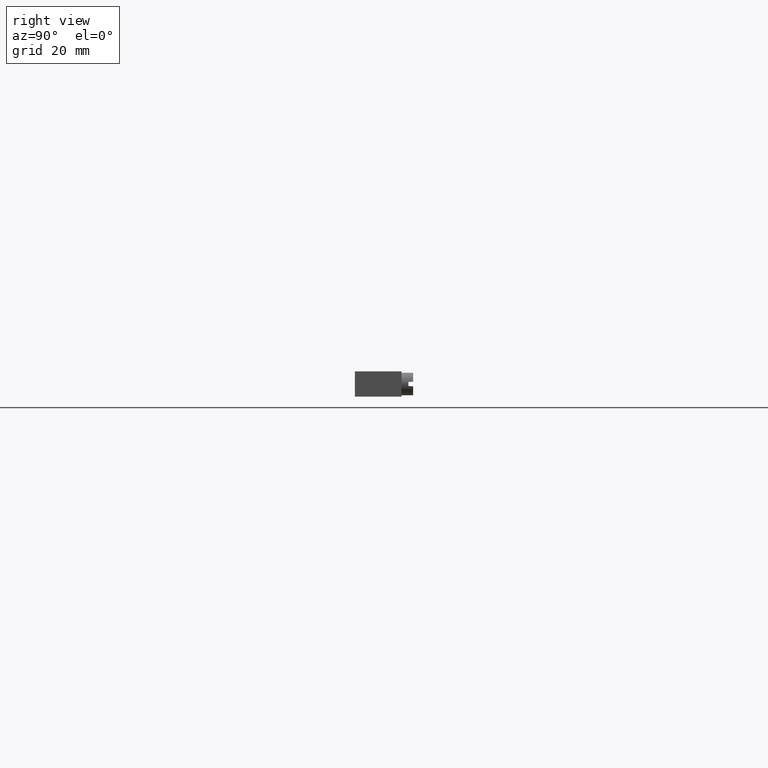
[diagram: clean part render]
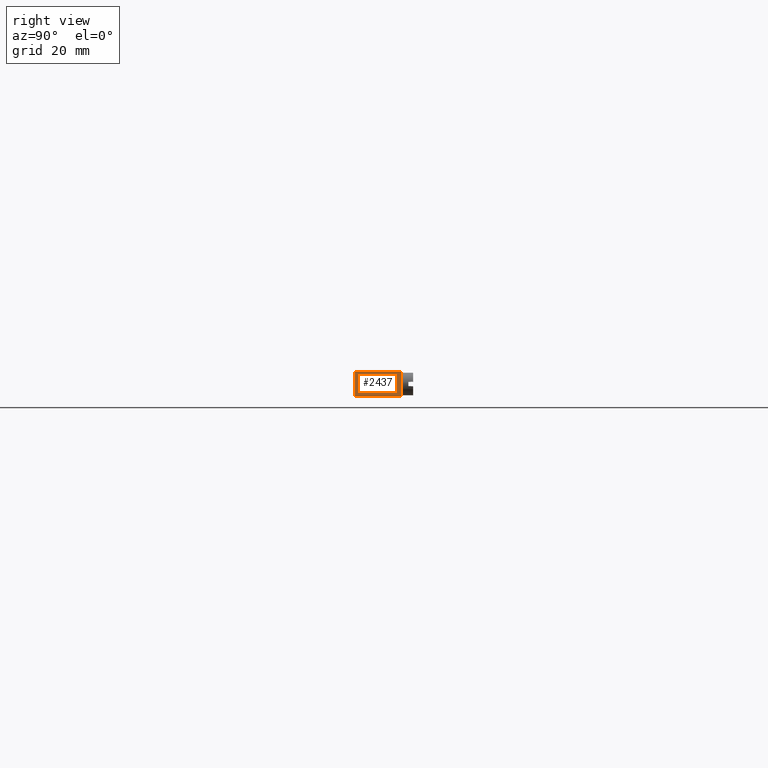
[diagram: same view with one face highlighted and labeled with its STEP entity id]
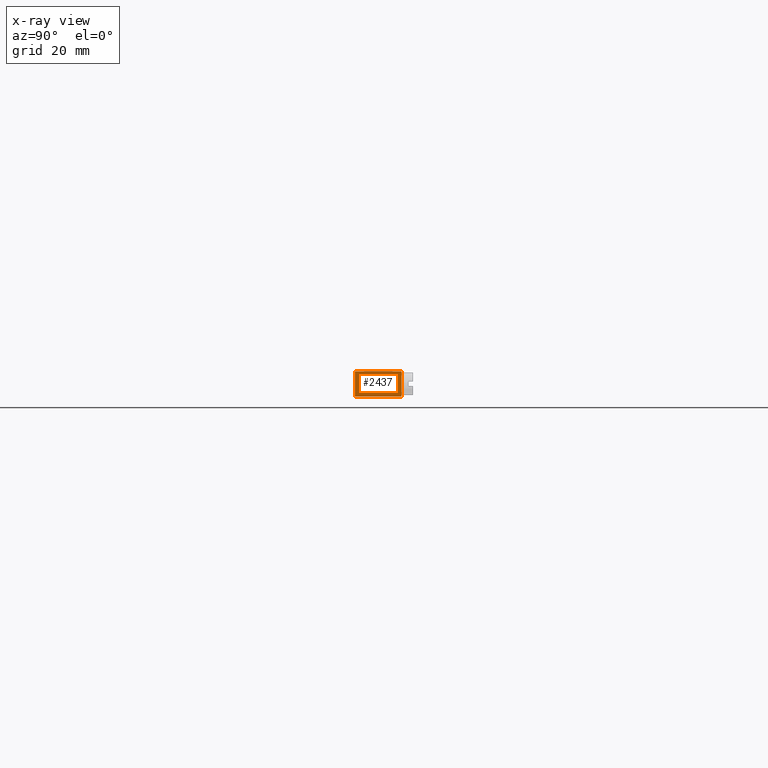
[diagram: x-ray of the same camera — body ghosted, the highlighted face saturated]
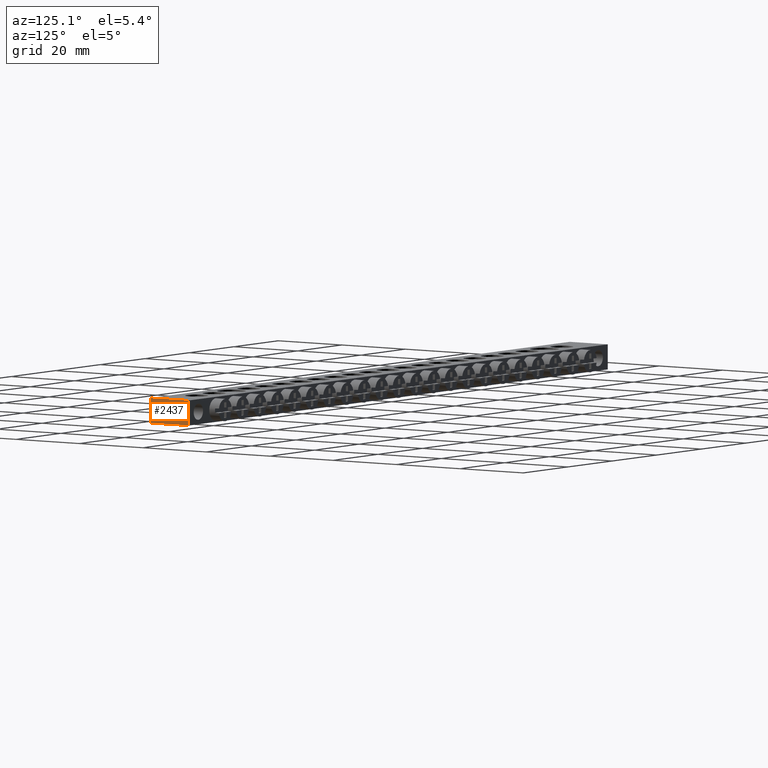
[diagram: same view with one face highlighted and labeled with its STEP entity id]
A machine part, right view. The second image highlights one B-rep face of the part: STEP entity #2437.
The next image is the same camera in x-ray: the body ghosted, the highlighted face saturated — about 0% of this face is hidden behind the body in this view.
A second angle (auxiliary view) of the same face is appended — the face is thin or edge-on in the first view.
In plain terms, the highlighted planar face has unit normal (-1, 0, 0).
Its self-contained STEP definition (entity closure, byte-faithful):
#615 = ORIENTED_EDGE ( 'NONE', *, *, #2691, .T. ) ;
#618 = ORIENTED_EDGE ( 'NONE', *, *, #2719, .T. ) ;
#636 = ORIENTED_EDGE ( 'NONE', *, *, #9409, .F. ) ;
#658 = ORIENTED_EDGE ( 'NONE', *, *, #2696, .F. ) ;
#1024 = EDGE_LOOP ( 'NONE', ( #615, #636, #658, #618 ) ) ;
#1385 = VERTEX_POINT ( 'NONE', #11010 ) ;
#1412 = VERTEX_POINT ( 'NONE', #11032 ) ;
#1424 = VERTEX_POINT ( 'NONE', #10993 ) ;
#1440 = VERTEX_POINT ( 'NONE', #11087 ) ;
#2437 = ADVANCED_FACE ( 'NONE', ( #6017 ), #6035, .F. ) ;
#2691 = EDGE_CURVE ( 'NONE', #1424, #1440, #3630, .T. ) ;
#2696 = EDGE_CURVE ( 'NONE', #1412, #1385, #3624, .T. ) ;
#2719 = EDGE_CURVE ( 'NONE', #1412, #1424, #3740, .T. ) ;
#3624 = LINE ( 'NONE', #3658, #5487 ) ;
#3630 = LINE ( 'NONE', #3660, #5490 ) ;
#3638 = DIRECTION ( 'NONE',  ( 0.0000000000000000000, 1.000000000000000000, 0.0000000000000000000 ) ) ;
#3651 = DIRECTION ( 'NONE',  ( 0.0000000000000000000, 1.000000000000000000, 0.0000000000000000000 ) ) ;
#3658 = CARTESIAN_POINT ( 'NONE',  ( 188.0000000000000000, 0.0000000000000000000, 6.500000000000000000 ) ) ;
#3660 = CARTESIAN_POINT ( 'NONE',  ( 188.0000000000000000, 0.0000000000000000000, 0.0000000000000000000 ) ) ;
#3725 = CARTESIAN_POINT ( 'NONE',  ( 188.0000000000000000, 0.0000000000000000000, 6.500000000000000000 ) ) ;
#3726 = DIRECTION ( 'NONE',  ( -0.0000000000000000000, -0.0000000000000000000, -1.000000000000000000 ) ) ;
#3740 = LINE ( 'NONE', #3725, #9522 ) ;
#5487 = VECTOR ( 'NONE', #3638, 1000.000000000000000 ) ;
#5490 = VECTOR ( 'NONE', #3651, 1000.000000000000000 ) ;
#6012 = DIRECTION ( 'NONE',  ( -1.000000000000000000, 0.0000000000000000000, 0.0000000000000000000 ) ) ;
#6016 = CARTESIAN_POINT ( 'NONE',  ( 188.0000000000000000, 0.0000000000000000000, 6.500000000000000000 ) ) ;
#6017 = FACE_OUTER_BOUND ( 'NONE', #1024, .T. ) ;
#6035 = PLANE ( 'NONE',  #6994 ) ;
#6043 = DIRECTION ( 'NONE',  ( 0.0000000000000000000, 0.0000000000000000000, 1.000000000000000000 ) ) ;
#6994 = AXIS2_PLACEMENT_3D ( 'NONE', #6016, #6012, #6043 ) ;
#9409 = EDGE_CURVE ( 'NONE', #1385, #1440, #13933, .T. ) ;
#9522 = VECTOR ( 'NONE', #3726, 1000.000000000000000 ) ;
#10993 = CARTESIAN_POINT ( 'NONE',  ( 188.0000000000000000, 0.0000000000000000000, 0.0000000000000000000 ) ) ;
#11010 = CARTESIAN_POINT ( 'NONE',  ( 188.0000000000000000, 12.00000000000000000, 6.500000000000000000 ) ) ;
#11032 = CARTESIAN_POINT ( 'NONE',  ( 188.0000000000000000, 0.0000000000000000000, 6.500000000000000000 ) ) ;
#11087 = CARTESIAN_POINT ( 'NONE',  ( 188.0000000000000000, 12.00000000000000000, 0.0000000000000000000 ) ) ;
#13933 = LINE ( 'NONE', #13958, #14075 ) ;
#13938 = DIRECTION ( 'NONE',  ( -0.0000000000000000000, -0.0000000000000000000, -1.000000000000000000 ) ) ;
#13958 = CARTESIAN_POINT ( 'NONE',  ( 188.0000000000000000, 12.00000000000000000, 6.500000000000000000 ) ) ;
#14075 = VECTOR ( 'NONE', #13938, 1000.000000000000000 ) ;